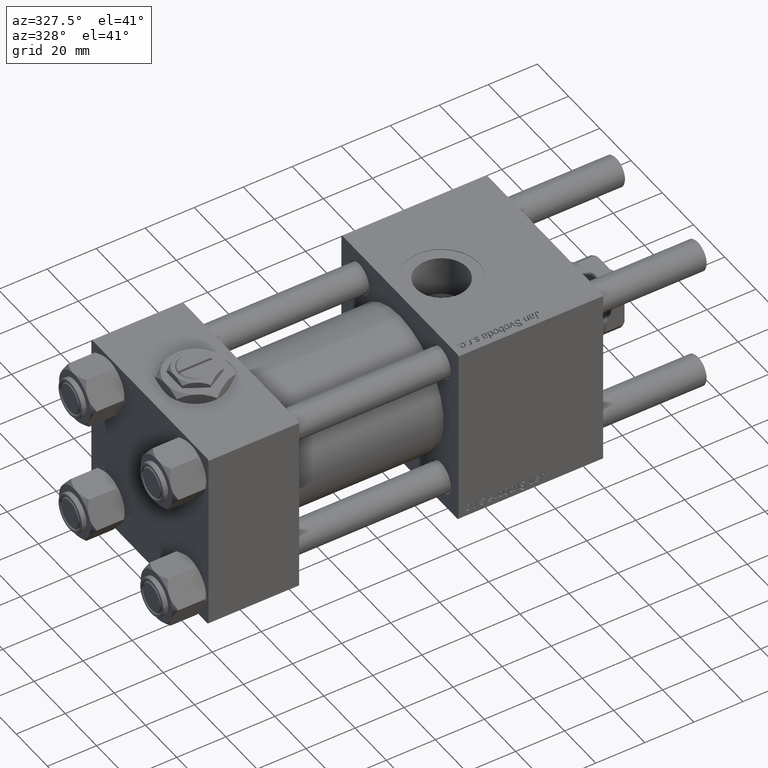
[diagram: clean part render]
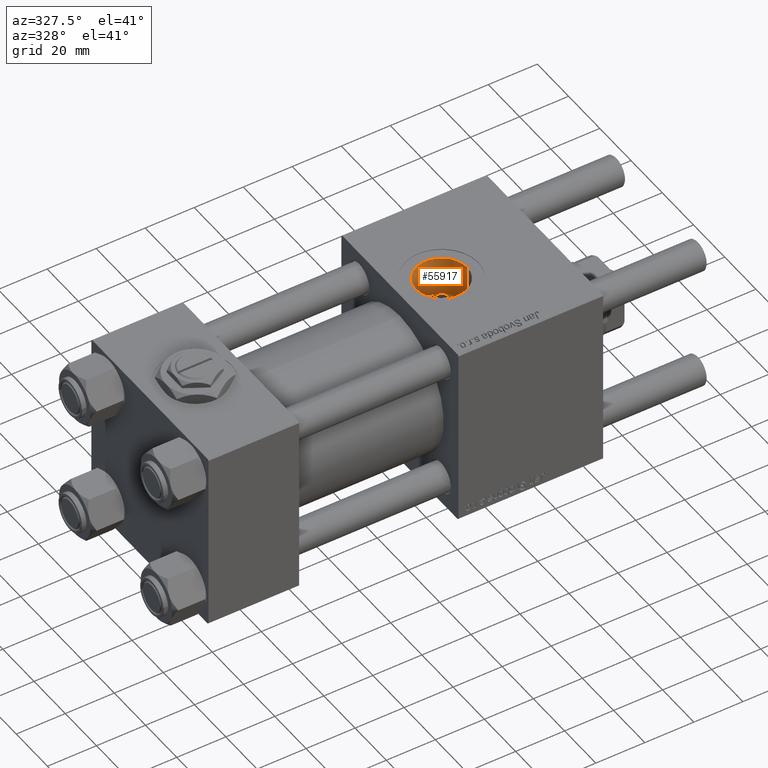
[diagram: same view with one face highlighted and labeled with its STEP entity id]
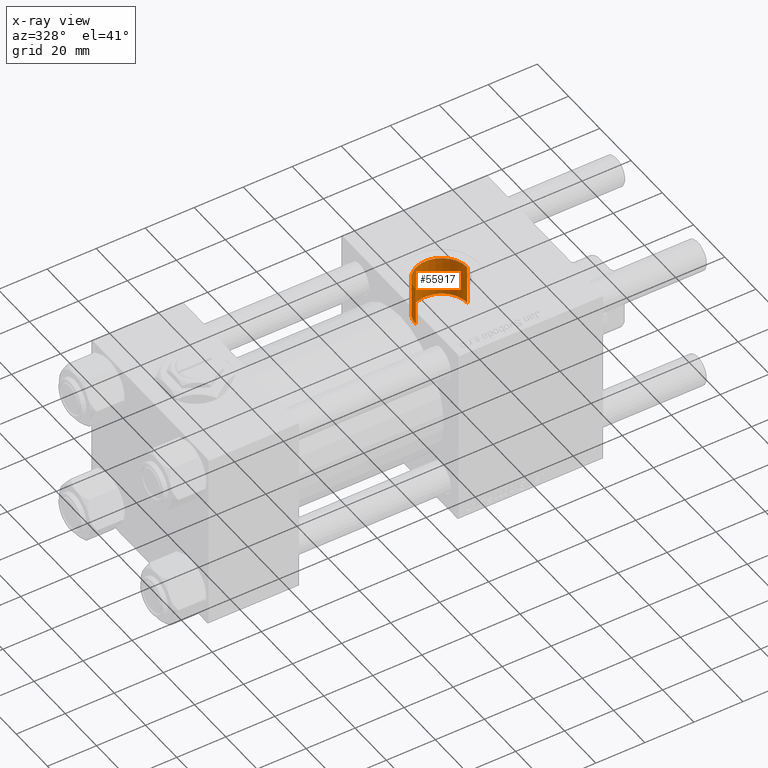
[diagram: x-ray of the same camera — body ghosted, the highlighted face saturated]
A machine part, auxiliary view. The second image highlights one B-rep face of the part: STEP entity #55917.
The next image is the same camera in x-ray: the body ghosted, the highlighted face saturated — about 0% of this face is hidden behind the body in this view.
In plain terms, the highlighted cylindrical surface (edge-blend (fillet) strip) has radius 10.48 mm, axis along (0, 0, -1).
Its self-contained STEP definition (entity closure, byte-faithful):
#3422 = VECTOR ( 'NONE', #45014, 1000.000000000000000 ) ;
#4618 = LINE ( 'NONE', #58665, #3422 ) ;
#5307 = LINE ( 'NONE', #28447, #26048 ) ;
#6795 = DIRECTION ( 'NONE',  ( 0.000000000000000000, 0.000000000000000000, -1.000000000000000000 ) ) ;
#6907 = ORIENTED_EDGE ( 'NONE', *, *, #14688, .F. ) ;
#10025 = CARTESIAN_POINT ( 'NONE',  ( 108.5200000000000102, -6.938893903907226011E-15, 21.09999999999998010 ) ) ;
#13453 = VERTEX_POINT ( 'NONE', #44393 ) ;
#13764 = AXIS2_PLACEMENT_3D ( 'NONE', #56405, #6795, #24335 ) ;
#14688 = EDGE_CURVE ( 'NONE', #46462, #19435, #23891, .T. ) ;
#15622 = ORIENTED_EDGE ( 'NONE', *, *, #29140, .F. ) ;
#19435 = VERTEX_POINT ( 'NONE', #10025 ) ;
#20942 = CARTESIAN_POINT ( 'NONE',  ( 129.4800000000000182, -5.655464058400800522E-15, 37.29999999999998295 ) ) ;
#23228 = EDGE_CURVE ( 'NONE', #13453, #19435, #5307, .T. ) ;
#23891 = CIRCLE ( 'NONE', #57093, 10.48000000000000398 ) ;
#24335 = DIRECTION ( 'NONE',  ( -1.000000000000000000, 0.000000000000000000, 0.000000000000000000 ) ) ;
#25898 = CARTESIAN_POINT ( 'NONE',  ( 129.4800000000000182, -5.655464058400800522E-15, 21.09999999999998010 ) ) ;
#26048 = VECTOR ( 'NONE', #41827, 1000.000000000000000 ) ;
#28053 = CIRCLE ( 'NONE', #40382, 10.48000000000000398 ) ;
#28447 = CARTESIAN_POINT ( 'NONE',  ( 108.5200000000000102, -6.938893903907226011E-15, 60.29999999999998295 ) ) ;
#29140 = EDGE_CURVE ( 'NONE', #13453, #32960, #28053, .T. ) ;
#32927 = ORIENTED_EDGE ( 'NONE', *, *, #23228, .T. ) ;
#32960 = VERTEX_POINT ( 'NONE', #20942 ) ;
#38576 = CYLINDRICAL_SURFACE ( 'NONE', #13764, 10.48000000000000398 ) ;
#40382 = AXIS2_PLACEMENT_3D ( 'NONE', #41105, #55360, #41993 ) ;
#41105 = CARTESIAN_POINT ( 'NONE',  ( 119.0000000000000142, -6.938893903907226011E-15, 37.29999999999998295 ) ) ;
#41823 = DIRECTION ( 'NONE',  ( 1.000000000000000000, 0.000000000000000000, 0.000000000000000000 ) ) ;
#41827 = DIRECTION ( 'NONE',  ( 0.000000000000000000, 0.000000000000000000, -1.000000000000000000 ) ) ;
#41993 = DIRECTION ( 'NONE',  ( 1.000000000000000000, 0.000000000000000000, 0.000000000000000000 ) ) ;
#42868 = ORIENTED_EDGE ( 'NONE', *, *, #58714, .F. ) ;
#44393 = CARTESIAN_POINT ( 'NONE',  ( 108.5200000000000102, -6.938893903907226011E-15, 37.29999999999998295 ) ) ;
#45014 = DIRECTION ( 'NONE',  ( 0.000000000000000000, 0.000000000000000000, -1.000000000000000000 ) ) ;
#46282 = CARTESIAN_POINT ( 'NONE',  ( 119.0000000000000142, -6.938893903907226011E-15, 21.09999999999998010 ) ) ;
#46462 = VERTEX_POINT ( 'NONE', #25898 ) ;
#46861 = DIRECTION ( 'NONE',  ( 0.000000000000000000, 0.000000000000000000, 1.000000000000000000 ) ) ;
#51361 = FACE_OUTER_BOUND ( 'NONE', #58548, .T. ) ;
#55360 = DIRECTION ( 'NONE',  ( -0.000000000000000000, -0.000000000000000000, -1.000000000000000000 ) ) ;
#55917 = ADVANCED_FACE ( 'NONE', ( #51361 ), #38576, .F. ) ;
#56405 = CARTESIAN_POINT ( 'NONE',  ( 119.0000000000000142, -6.938893903907226011E-15, 60.29999999999998295 ) ) ;
#57093 = AXIS2_PLACEMENT_3D ( 'NONE', #46282, #46861, #41823 ) ;
#58548 = EDGE_LOOP ( 'NONE', ( #42868, #15622, #32927, #6907 ) ) ;
#58665 = CARTESIAN_POINT ( 'NONE',  ( 129.4800000000000182, -5.655464058400799734E-15, 60.29999999999998295 ) ) ;
#58714 = EDGE_CURVE ( 'NONE', #32960, #46462, #4618, .T. ) ;